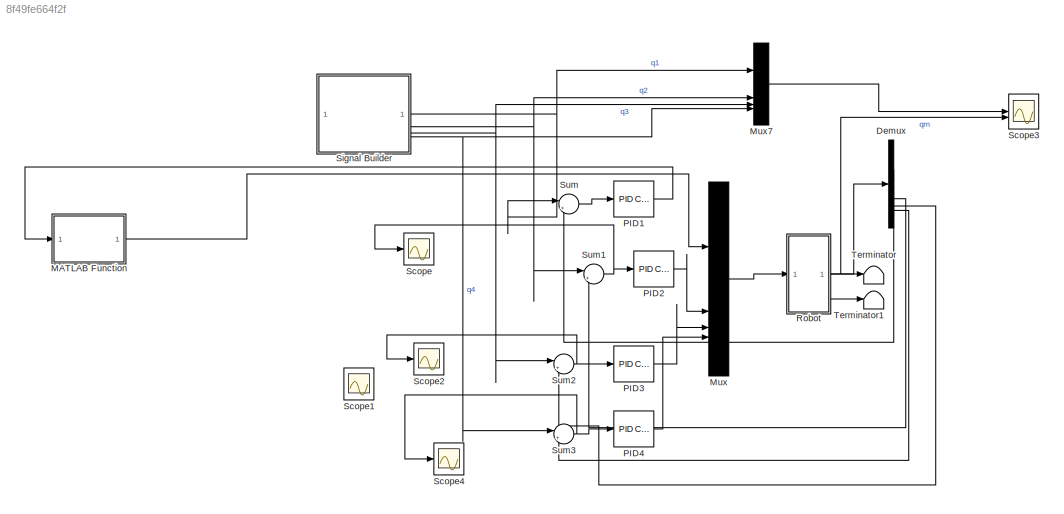
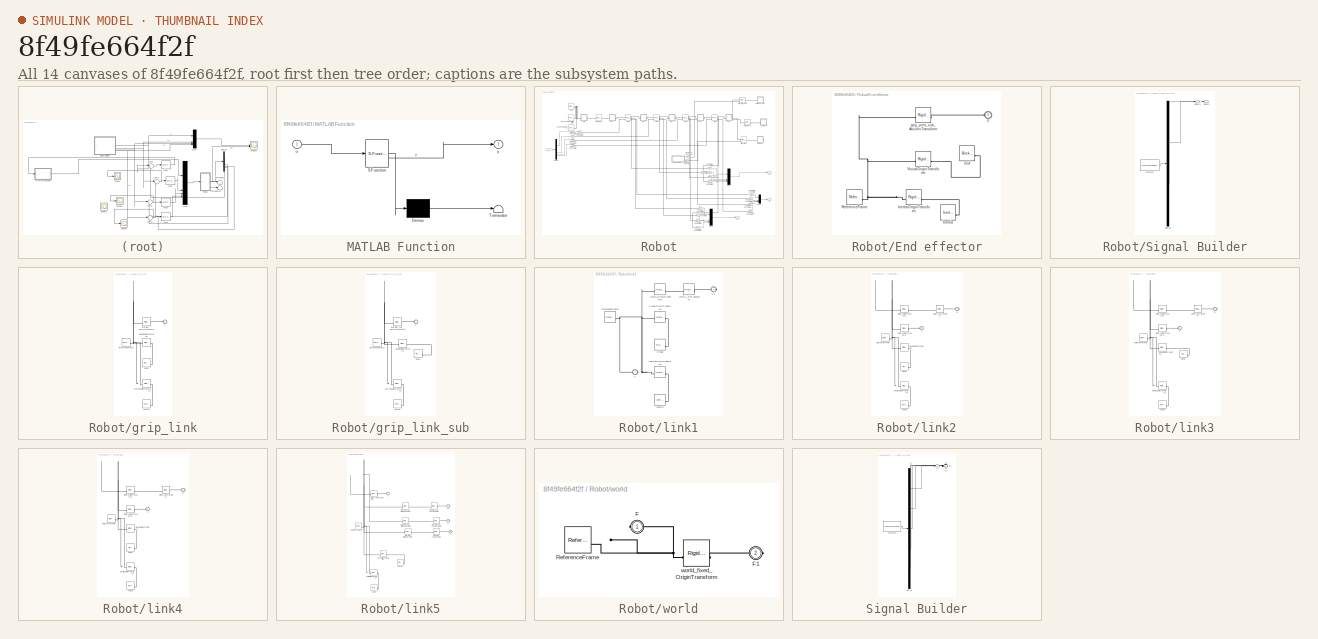
[diagram: thumbnail index - all 14 canvases of the model, root first then tree order]
MODEL slx_8f49fe664f2f
KIND model
CONFIG AbsTol = auto
CONFIG EnableMultiTasking = off
CONFIG FixedStep = auto
CONFIG MaxStep = auto
CONFIG MinStep = auto
CONFIG RelTol = 1e-3
CONFIG SampleTimeConstraint = Unconstrained
CONFIG SolverName = VariableStepAuto
CONFIG StartTime = 0.0
CONFIG StopTime = 50
BLOCK [Demux] Demux
BLOCK [SubSystem] MATLAB Function
  ErrorFcn = Stateflow.Translate.translate
  PermitHierarchicalResolution = ExplicitOnly
  SFBlockType = MATLAB Function
  TreatAsAtomicUnit = on
BLOCK [Demux] MATLAB Function/ Demux 
  Outputs = 1
BLOCK [S-Function] MATLAB Function/ SFunction 
  EnableBusSupport = off
  FunctionName = sf_sfun
  PortCounts = [1 2]
  SFcnIsStateOwnerBlock = off
  SFunctionDeploymentMode = off
  Tag = Stateflow S-Function 2
BLOCK [Terminator] MATLAB Function/ Terminator 
BLOCK [Inport] MATLAB Function/u
BLOCK [Outport] MATLAB Function/y
  VectorParamsAs1DForOutWhenUnconnected = off
BLOCK [Mux] Mux
  DisplayOption = bar
BLOCK [Mux] Mux7
  DisplayOption = bar
BLOCK [Reference] PID1  REF=slpidlib/PID Controller
  LibrarySourceBlock = simulink/Continuous/PID Controller
  SourceBlock = slpidlib/PID Controller
  SourceType = PID 1dof
BLOCK [Reference] PID2  REF=slpidlib/PID Controller
  LibrarySourceBlock = simulink/Continuous/PID Controller
  SourceBlock = slpidlib/PID Controller
  SourceType = PID 1dof
BLOCK [Reference] PID3   REF=slpidlib/PID Controller
  LibrarySourceBlock = simulink/Continuous/PID Controller
  SourceBlock = slpidlib/PID Controller
  SourceType = PID 1dof
BLOCK [Reference] PID4  REF=slpidlib/PID Controller
  LibrarySourceBlock = simulink/Continuous/PID Controller
  SourceBlock = slpidlib/PID Controller
  SourceType = PID 1dof
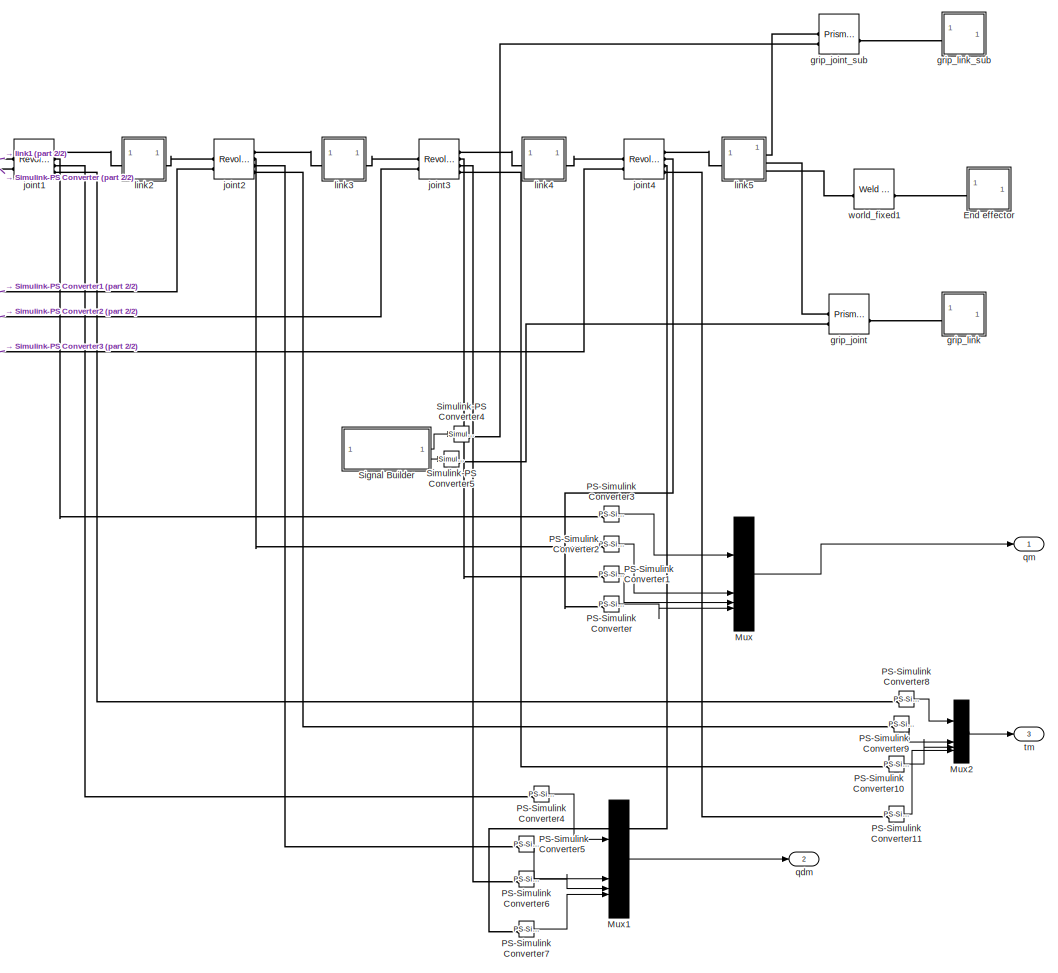
[diagram: Robot - part 1/2, right side, full height]
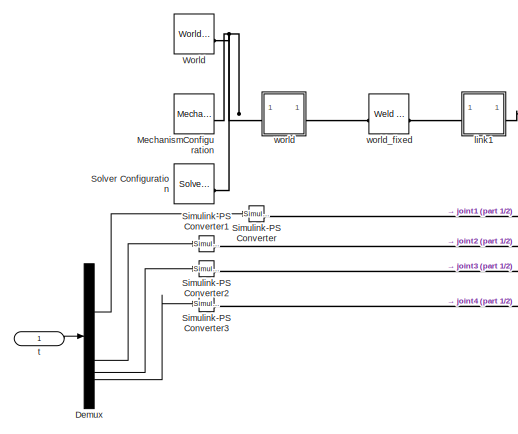
[diagram: Robot - part 2/2, top left region]
BLOCK [SubSystem] Robot
BLOCK [Demux] Robot/Demux
BLOCK [SubSystem] Robot/End effector
BLOCK [Reference] Robot/End effector/End   REF=sm_lib/Body Elements/Brick Solid
  SourceBlock = sm_lib/Body Elements/Brick Solid
  SourceType = Brick Solid
BLOCK [PMIOPort] Robot/End effector/F
  Side = Left
BLOCK [Reference] Robot/End effector/Inertia  REF=sm_lib/Body Elements/Inertia
  SourceBlock = sm_lib/Body Elements/Inertia
  SourceType = Inertia
BLOCK [Reference] Robot/End effector/InertiaOriginTransform  REF=sm_lib/Frames and
Transforms/Rigid
Transform
  SourceBlock = sm_lib/Frames and\nTransforms/Rigid\nTransform
  SourceType = Rigid\nTransform
BLOCK [Reference] Robot/End effector/ReferenceFrame  REF=sm_lib/Frames and
Transforms/Reference
Frame
  SourceBlock = sm_lib/Frames and\nTransforms/Reference\nFrame
  SourceType = Reference\nFrame
BLOCK [Reference] Robot/End effector/VisualOriginTransform  REF=sm_lib/Frames and
Transforms/Rigid
Transform
  SourceBlock = sm_lib/Frames and\nTransforms/Rigid\nTransform
  SourceType = Rigid\nTransform
BLOCK [Reference] Robot/End effector/grip_joint_sub_AxisInvTransform  REF=sm_lib/Frames and
Transforms/Rigid
Transform
  SourceBlock = sm_lib/Frames and\nTransforms/Rigid\nTransform
  SourceType = Rigid\nTransform
BLOCK [Reference] Robot/MechanismConfiguration  REF=sm_lib/Utilities/Mechanism
Configuration
  SourceBlock = sm_lib/Utilities/Mechanism\nConfiguration
  SourceType = Mechanism\nConfiguration
BLOCK [Mux] Robot/Mux
  DisplayOption = bar
BLOCK [Mux] Robot/Mux1
  DisplayOption = bar
BLOCK [Mux] Robot/Mux2
  DisplayOption = bar
BLOCK [Reference] Robot/PS-Simulink Converter  REF=nesl_utility/PS-Simulink
Converter
  SourceBlock = nesl_utility/PS-Simulink\nConverter
  SourceType = PS-Simulink\nConverter
BLOCK [Reference] Robot/PS-Simulink Converter1  REF=nesl_utility/PS-Simulink
Converter
  SourceBlock = nesl_utility/PS-Simulink\nConverter
  SourceType = PS-Simulink\nConverter
BLOCK [Reference] Robot/PS-Simulink Converter10  REF=nesl_utility/PS-Simulink
Converter
  SourceBlock = nesl_utility/PS-Simulink\nConverter
  SourceType = PS-Simulink\nConverter
BLOCK [Reference] Robot/PS-Simulink Converter11  REF=nesl_utility/PS-Simulink
Converter
  SourceBlock = nesl_utility/PS-Simulink\nConverter
  SourceType = PS-Simulink\nConverter
BLOCK [Reference] Robot/PS-Simulink Converter2  REF=nesl_utility/PS-Simulink
Converter
  NameLocation = right
  SourceBlock = nesl_utility/PS-Simulink\nConverter
  SourceType = PS-Simulink\nConverter
BLOCK [Reference] Robot/PS-Simulink Converter3  REF=nesl_utility/PS-Simulink
Converter
  SourceBlock = nesl_utility/PS-Simulink\nConverter
  SourceType = PS-Simulink\nConverter
BLOCK [Reference] Robot/PS-Simulink Converter4  REF=nesl_utility/PS-Simulink
Converter
  SourceBlock = nesl_utility/PS-Simulink\nConverter
  SourceType = PS-Simulink\nConverter
BLOCK [Reference] Robot/PS-Simulink Converter5  REF=nesl_utility/PS-Simulink
Converter
  SourceBlock = nesl_utility/PS-Simulink\nConverter
  SourceType = PS-Simulink\nConverter
BLOCK [Reference] Robot/PS-Simulink Converter6  REF=nesl_utility/PS-Simulink
Converter
  SourceBlock = nesl_utility/PS-Simulink\nConverter
  SourceType = PS-Simulink\nConverter
BLOCK [Reference] Robot/PS-Simulink Converter7  REF=nesl_utility/PS-Simulink
Converter
  SourceBlock = nesl_utility/PS-Simulink\nConverter
  SourceType = PS-Simulink\nConverter
BLOCK [Reference] Robot/PS-Simulink Converter8  REF=nesl_utility/PS-Simulink
Converter
  SourceBlock = nesl_utility/PS-Simulink\nConverter
  SourceType = PS-Simulink\nConverter
BLOCK [Reference] Robot/PS-Simulink Converter9  REF=nesl_utility/PS-Simulink
Converter
  SourceBlock = nesl_utility/PS-Simulink\nConverter
  SourceType = PS-Simulink\nConverter
BLOCK [SubSystem] Robot/Signal Builder
  ClipboardFcn = sigbuilder_block('clipboard');
  CloseFcn = sigbuilder_block('close');
  ContinueFcn = sigbuilder_block('continue');
  CopyFcn = sigbuilder_block('copy');
  DeleteFcn = sigbuilder_block('delete');
  LoadFcn = sigbuilder_block('load');
  MaskHideContents = on
  ModelCloseFcn = sigbuilder_block('modelClose');
  NameChangeFcn = sigbuilder_block('namechange');
  OpenFcn = sigbuilder_block('open',[433.5 124.5 558 353.25 ]);
  PauseFcn = sigbuilder_block('pause');
  PreSaveFcn = sigbuilder_block('preSave');
  StartFcn = sigbuilder_block('start');
  StopFcn = sigbuilder_block('stop');
  Tag = STV Subsys
BLOCK [Demux] Robot/Signal Builder/Demux
  DisplayOption = none
  Outputs = 2
  Tag = STV Demux
BLOCK [FromWorkspace] Robot/Signal Builder/FromWs
  Tag = STV FromWs
  VariableName = tuvar
BLOCK [Outport] Robot/Signal Builder/Signal 1
  Tag = STV Outport
BLOCK [Outport] Robot/Signal Builder/Signal 2
  Port = 2
  Tag = STV Outport
BLOCK [Reference] Robot/Simulink-PS Converter  REF=nesl_utility/Simulink-PS
Converter
  SourceBlock = nesl_utility/Simulink-PS\nConverter
  SourceType = Simulink-PS\nConverter
BLOCK [Reference] Robot/Simulink-PS Converter1  REF=nesl_utility/Simulink-PS
Converter
  SourceBlock = nesl_utility/Simulink-PS\nConverter
  SourceType = Simulink-PS\nConverter
BLOCK [Reference] Robot/Simulink-PS Converter2  REF=nesl_utility/Simulink-PS
Converter
  SourceBlock = nesl_utility/Simulink-PS\nConverter
  SourceType = Simulink-PS\nConverter
BLOCK [Reference] Robot/Simulink-PS Converter3  REF=nesl_utility/Simulink-PS
Converter
  SourceBlock = nesl_utility/Simulink-PS\nConverter
  SourceType = Simulink-PS\nConverter
BLOCK [Reference] Robot/Simulink-PS Converter4  REF=nesl_utility/Simulink-PS
Converter
  SourceBlock = nesl_utility/Simulink-PS\nConverter
  SourceType = Simulink-PS\nConverter
BLOCK [Reference] Robot/Simulink-PS Converter5  REF=nesl_utility/Simulink-PS
Converter
  SourceBlock = nesl_utility/Simulink-PS\nConverter
  SourceType = Simulink-PS\nConverter
BLOCK [Reference] Robot/Solver Configuration  REF=nesl_utility/Solver
Configuration
  SourceBlock = nesl_utility/Solver\nConfiguration
  SourceType = Solver\nConfiguration
BLOCK [Reference] Robot/World  REF=sm_lib/Frames and
Transforms/World Frame
  SourceBlock = sm_lib/Frames and\nTransforms/World Frame
  SourceType = World Frame
BLOCK [Reference] Robot/grip_joint  REF=sm_lib/Joints/Prismatic
Joint
  SourceBlock = sm_lib/Joints/Prismatic\nJoint
  SourceType = Prismatic\nJoint
BLOCK [Reference] Robot/grip_joint_sub  REF=sm_lib/Joints/Prismatic
Joint
  SourceBlock = sm_lib/Joints/Prismatic\nJoint
  SourceType = Prismatic\nJoint
BLOCK [SubSystem] Robot/grip_link
BLOCK [PMIOPort] Robot/grip_link/F
  Side = Left
BLOCK [Reference] Robot/grip_link/Inertia  REF=sm_lib/Body Elements/Inertia
  SourceBlock = sm_lib/Body Elements/Inertia
  SourceType = Inertia
BLOCK [Reference] Robot/grip_link/InertiaOriginTransform  REF=sm_lib/Frames and
Transforms/Rigid
Transform
  SourceBlock = sm_lib/Frames and\nTransforms/Rigid\nTransform
  SourceType = Rigid\nTransform
BLOCK [Reference] Robot/grip_link/ReferenceFrame  REF=sm_lib/Frames and
Transforms/Reference
Frame
  SourceBlock = sm_lib/Frames and\nTransforms/Reference\nFrame
  SourceType = Reference\nFrame
BLOCK [Reference] Robot/grip_link/Visual  REF=sm_lib/Body Elements/File Solid
  SourceBlock = sm_lib/Body Elements/File Solid
  SourceType = File Solid
BLOCK [Reference] Robot/grip_link/VisualOriginTransform  REF=sm_lib/Frames and
Transforms/Rigid
Transform
  SourceBlock = sm_lib/Frames and\nTransforms/Rigid\nTransform
  SourceType = Rigid\nTransform
BLOCK [Reference] Robot/grip_link/grip_joint_AxisInvTransform  REF=sm_lib/Frames and
Transforms/Rigid
Transform
  SourceBlock = sm_lib/Frames and\nTransforms/Rigid\nTransform
  SourceType = Rigid\nTransform
BLOCK [SubSystem] Robot/grip_link_sub
BLOCK [PMIOPort] Robot/grip_link_sub/F
  Side = Left
BLOCK [Reference] Robot/grip_link_sub/Inertia  REF=sm_lib/Body Elements/Inertia
  SourceBlock = sm_lib/Body Elements/Inertia
  SourceType = Inertia
BLOCK [Reference] Robot/grip_link_sub/InertiaOriginTransform  REF=sm_lib/Frames and
Transforms/Rigid
Transform
  SourceBlock = sm_lib/Frames and\nTransforms/Rigid\nTransform
  SourceType = Rigid\nTransform
BLOCK [Reference] Robot/grip_link_sub/ReferenceFrame  REF=sm_lib/Frames and
Transforms/Reference
Frame
  SourceBlock = sm_lib/Frames and\nTransforms/Reference\nFrame
  SourceType = Reference\nFrame
BLOCK [Reference] Robot/grip_link_sub/Visual  REF=sm_lib/Body Elements/File Solid
  SourceBlock = sm_lib/Body Elements/File Solid
  SourceType = File Solid
BLOCK [Reference] Robot/grip_link_sub/VisualOriginTransform  REF=sm_lib/Frames and
Transforms/Rigid
Transform
  SourceBlock = sm_lib/Frames and\nTransforms/Rigid\nTransform
  SourceType = Rigid\nTransform
BLOCK [Reference] Robot/grip_link_sub/grip_joint_sub_AxisInvTransform  REF=sm_lib/Frames and
Transforms/Rigid
Transform
  SourceBlock = sm_lib/Frames and\nTransforms/Rigid\nTransform
  SourceType = Rigid\nTransform
BLOCK [Reference] Robot/joint1  REF=sm_lib/Joints/Revolute Joint
  SourceBlock = sm_lib/Joints/Revolute Joint
  SourceType = Revolute Joint
BLOCK [Reference] Robot/joint2  REF=sm_lib/Joints/Revolute Joint
  SourceBlock = sm_lib/Joints/Revolute Joint
  SourceType = Revolute Joint
BLOCK [Reference] Robot/joint3  REF=sm_lib/Joints/Revolute Joint
  SourceBlock = sm_lib/Joints/Revolute Joint
  SourceType = Revolute Joint
BLOCK [Reference] Robot/joint4  REF=sm_lib/Joints/Revolute Joint
  SourceBlock = sm_lib/Joints/Revolute Joint
  SourceType = Revolute Joint
BLOCK [SubSystem] Robot/link1
BLOCK [PMIOPort] Robot/link1/F
  Side = Left
BLOCK [PMIOPort] Robot/link1/F1
  Port = 2
  Side = Right
BLOCK [Reference] Robot/link1/Inertia  REF=sm_lib/Body Elements/Inertia
  SourceBlock = sm_lib/Body Elements/Inertia
  SourceType = Inertia
BLOCK [Reference] Robot/link1/InertiaOriginTransform  REF=sm_lib/Frames and
Transforms/Rigid
Transform
  SourceBlock = sm_lib/Frames and\nTransforms/Rigid\nTransform
  SourceType = Rigid\nTransform
BLOCK [Reference] Robot/link1/ReferenceFrame  REF=sm_lib/Frames and
Transforms/Reference
Frame
  SourceBlock = sm_lib/Frames and\nTransforms/Reference\nFrame
  SourceType = Reference\nFrame
BLOCK [Reference] Robot/link1/Visual  REF=sm_lib/Body Elements/File Solid
  SourceBlock = sm_lib/Body Elements/File Solid
  SourceType = File Solid
BLOCK [Reference] Robot/link1/VisualOriginTransform  REF=sm_lib/Frames and
Transforms/Rigid
Transform
  SourceBlock = sm_lib/Frames and\nTransforms/Rigid\nTransform
  SourceType = Rigid\nTransform
BLOCK [Reference] Robot/link1/joint1_AxisTransform  REF=sm_lib/Frames and
Transforms/Rigid
Transform
  SourceBlock = sm_lib/Frames and\nTransforms/Rigid\nTransform
  SourceType = Rigid\nTransform
BLOCK [Reference] Robot/link1/joint1_OriginTransform  REF=sm_lib/Frames and
Transforms/Rigid
Transform
  SourceBlock = sm_lib/Frames and\nTransforms/Rigid\nTransform
  SourceType = Rigid\nTransform
BLOCK [SubSystem] Robot/link2
BLOCK [PMIOPort] Robot/link2/F
  Side = Left
BLOCK [PMIOPort] Robot/link2/F1
  Port = 2
  Side = Right
BLOCK [Reference] Robot/link2/Inertia  REF=sm_lib/Body Elements/Inertia
  SourceBlock = sm_lib/Body Elements/Inertia
  SourceType = Inertia
BLOCK [Reference] Robot/link2/InertiaOriginTransform  REF=sm_lib/Frames and
Transforms/Rigid
Transform
  SourceBlock = sm_lib/Frames and\nTransforms/Rigid\nTransform
  SourceType = Rigid\nTransform
BLOCK [Reference] Robot/link2/ReferenceFrame  REF=sm_lib/Frames and
Transforms/Reference
Frame
  SourceBlock = sm_lib/Frames and\nTransforms/Reference\nFrame
  SourceType = Reference\nFrame
BLOCK [Reference] Robot/link2/Visual  REF=sm_lib/Body Elements/File Solid
  SourceBlock = sm_lib/Body Elements/File Solid
  SourceType = File Solid
BLOCK [Reference] Robot/link2/VisualOriginTransform  REF=sm_lib/Frames and
Transforms/Rigid
Transform
  SourceBlock = sm_lib/Frames and\nTransforms/Rigid\nTransform
  SourceType = Rigid\nTransform
BLOCK [Reference] Robot/link2/joint1_AxisInvTransform  REF=sm_lib/Frames and
Transforms/Rigid
Transform
  SourceBlock = sm_lib/Frames and\nTransforms/Rigid\nTransform
  SourceType = Rigid\nTransform
BLOCK [Reference] Robot/link2/joint2_AxisTransform  REF=sm_lib/Frames and
Transforms/Rigid
Transform
  SourceBlock = sm_lib/Frames and\nTransforms/Rigid\nTransform
  SourceType = Rigid\nTransform
BLOCK [Reference] Robot/link2/joint2_OriginTransform  REF=sm_lib/Frames and
Transforms/Rigid
Transform
  SourceBlock = sm_lib/Frames and\nTransforms/Rigid\nTransform
  SourceType = Rigid\nTransform
BLOCK [SubSystem] Robot/link3
BLOCK [PMIOPort] Robot/link3/F
  Side = Left
BLOCK [PMIOPort] Robot/link3/F1
  Port = 2
  Side = Right
BLOCK [Reference] Robot/link3/Inertia  REF=sm_lib/Body Elements/Inertia
  SourceBlock = sm_lib/Body Elements/Inertia
  SourceType = Inertia
BLOCK [Reference] Robot/link3/InertiaOriginTransform  REF=sm_lib/Frames and
Transforms/Rigid
Transform
  SourceBlock = sm_lib/Frames and\nTransforms/Rigid\nTransform
  SourceType = Rigid\nTransform
BLOCK [Reference] Robot/link3/ReferenceFrame  REF=sm_lib/Frames and
Transforms/Reference
Frame
  SourceBlock = sm_lib/Frames and\nTransforms/Reference\nFrame
  SourceType = Reference\nFrame
BLOCK [Reference] Robot/link3/Visual  REF=sm_lib/Body Elements/File Solid
  SourceBlock = sm_lib/Body Elements/File Solid
  SourceType = File Solid
BLOCK [Reference] Robot/link3/VisualOriginTransform  REF=sm_lib/Frames and
Transforms/Rigid
Transform
  SourceBlock = sm_lib/Frames and\nTransforms/Rigid\nTransform
  SourceType = Rigid\nTransform
BLOCK [Reference] Robot/link3/joint2_AxisInvTransform  REF=sm_lib/Frames and
Transforms/Rigid
Transform
  SourceBlock = sm_lib/Frames and\nTransforms/Rigid\nTransform
  SourceType = Rigid\nTransform
BLOCK [Reference] Robot/link3/joint3_AxisTransform  REF=sm_lib/Frames and
Transforms/Rigid
Transform
  SourceBlock = sm_lib/Frames and\nTransforms/Rigid\nTransform
  SourceType = Rigid\nTransform
BLOCK [Reference] Robot/link3/joint3_OriginTransform  REF=sm_lib/Frames and
Transforms/Rigid
Transform
  SourceBlock = sm_lib/Frames and\nTransforms/Rigid\nTransform
  SourceType = Rigid\nTransform
BLOCK [SubSystem] Robot/link4
BLOCK [PMIOPort] Robot/link4/F
  Side = Left
BLOCK [PMIOPort] Robot/link4/F1
  Port = 2
  Side = Right
BLOCK [Reference] Robot/link4/Inertia  REF=sm_lib/Body Elements/Inertia
  SourceBlock = sm_lib/Body Elements/Inertia
  SourceType = Inertia
BLOCK [Reference] Robot/link4/InertiaOriginTransform  REF=sm_lib/Frames and
Transforms/Rigid
Transform
  SourceBlock = sm_lib/Frames and\nTransforms/Rigid\nTransform
  SourceType = Rigid\nTransform
BLOCK [Reference] Robot/link4/ReferenceFrame  REF=sm_lib/Frames and
Transforms/Reference
Frame
  SourceBlock = sm_lib/Frames and\nTransforms/Reference\nFrame
  SourceType = Reference\nFrame
BLOCK [Reference] Robot/link4/Visual  REF=sm_lib/Body Elements/File Solid
  SourceBlock = sm_lib/Body Elements/File Solid
  SourceType = File Solid
BLOCK [Reference] Robot/link4/VisualOriginTransform  REF=sm_lib/Frames and
Transforms/Rigid
Transform
  SourceBlock = sm_lib/Frames and\nTransforms/Rigid\nTransform
  SourceType = Rigid\nTransform
BLOCK [Reference] Robot/link4/joint3_AxisInvTransform  REF=sm_lib/Frames and
Transforms/Rigid
Transform
  SourceBlock = sm_lib/Frames and\nTransforms/Rigid\nTransform
  SourceType = Rigid\nTransform
BLOCK [Reference] Robot/link4/joint4_AxisTransform  REF=sm_lib/Frames and
Transforms/Rigid
Transform
  SourceBlock = sm_lib/Frames and\nTransforms/Rigid\nTransform
  SourceType = Rigid\nTransform
BLOCK [Reference] Robot/link4/joint4_OriginTransform  REF=sm_lib/Frames and
Transforms/Rigid
Transform
  SourceBlock = sm_lib/Frames and\nTransforms/Rigid\nTransform
  SourceType = Rigid\nTransform
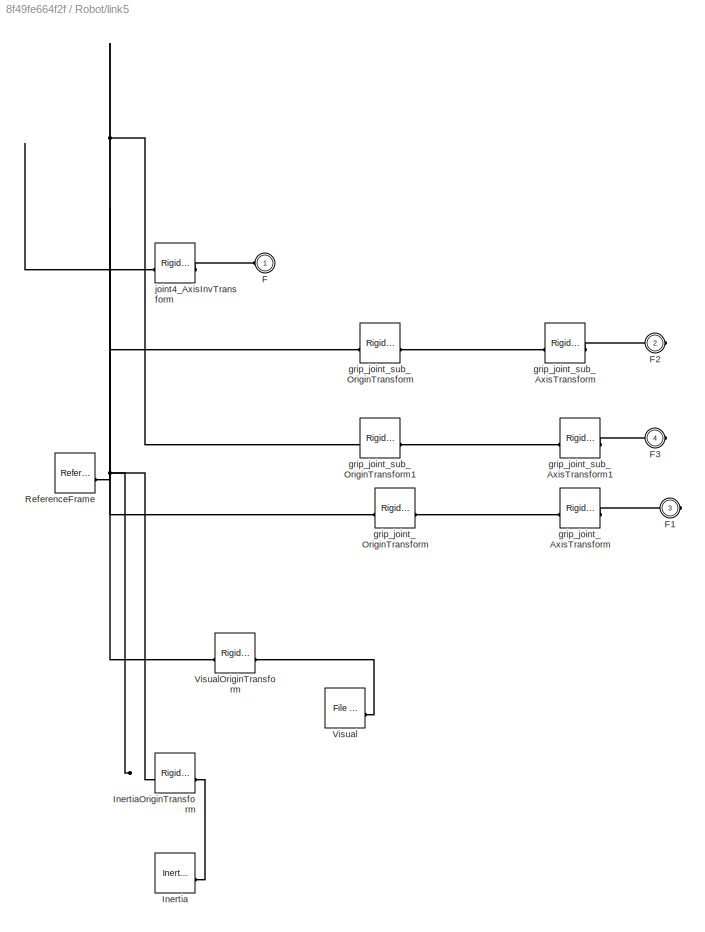
BLOCK [SubSystem] Robot/link5
BLOCK [PMIOPort] Robot/link5/F
  Side = Left
BLOCK [PMIOPort] Robot/link5/F1
  Port = 3
  Side = Right
BLOCK [PMIOPort] Robot/link5/F2
  Port = 2
  Side = Right
BLOCK [PMIOPort] Robot/link5/F3
  Port = 4
  Side = Right
BLOCK [Reference] Robot/link5/Inertia  REF=sm_lib/Body Elements/Inertia
  SourceBlock = sm_lib/Body Elements/Inertia
  SourceType = Inertia
BLOCK [Reference] Robot/link5/InertiaOriginTransform  REF=sm_lib/Frames and
Transforms/Rigid
Transform
  SourceBlock = sm_lib/Frames and\nTransforms/Rigid\nTransform
  SourceType = Rigid\nTransform
BLOCK [Reference] Robot/link5/ReferenceFrame  REF=sm_lib/Frames and
Transforms/Reference
Frame
  SourceBlock = sm_lib/Frames and\nTransforms/Reference\nFrame
  SourceType = Reference\nFrame
BLOCK [Reference] Robot/link5/Visual  REF=sm_lib/Body Elements/File Solid
  SourceBlock = sm_lib/Body Elements/File Solid
  SourceType = File Solid
BLOCK [Reference] Robot/link5/VisualOriginTransform  REF=sm_lib/Frames and
Transforms/Rigid
Transform
  SourceBlock = sm_lib/Frames and\nTransforms/Rigid\nTransform
  SourceType = Rigid\nTransform
BLOCK [Reference] Robot/link5/grip_joint_AxisTransform  REF=sm_lib/Frames and
Transforms/Rigid
Transform
  SourceBlock = sm_lib/Frames and\nTransforms/Rigid\nTransform
  SourceType = Rigid\nTransform
BLOCK [Reference] Robot/link5/grip_joint_OriginTransform  REF=sm_lib/Frames and
Transforms/Rigid
Transform
  SourceBlock = sm_lib/Frames and\nTransforms/Rigid\nTransform
  SourceType = Rigid\nTransform
BLOCK [Reference] Robot/link5/grip_joint_sub_AxisTransform  REF=sm_lib/Frames and
Transforms/Rigid
Transform
  SourceBlock = sm_lib/Frames and\nTransforms/Rigid\nTransform
  SourceType = Rigid\nTransform
BLOCK [Reference] Robot/link5/grip_joint_sub_AxisTransform1  REF=sm_lib/Frames and
Transforms/Rigid
Transform
  SourceBlock = sm_lib/Frames and\nTransforms/Rigid\nTransform
  SourceType = Rigid\nTransform
BLOCK [Reference] Robot/link5/grip_joint_sub_OriginTransform  REF=sm_lib/Frames and
Transforms/Rigid
Transform
  SourceBlock = sm_lib/Frames and\nTransforms/Rigid\nTransform
  SourceType = Rigid\nTransform
BLOCK [Reference] Robot/link5/grip_joint_sub_OriginTransform1  REF=sm_lib/Frames and
Transforms/Rigid
Transform
  SourceBlock = sm_lib/Frames and\nTransforms/Rigid\nTransform
  SourceType = Rigid\nTransform
BLOCK [Reference] Robot/link5/joint4_AxisInvTransform  REF=sm_lib/Frames and
Transforms/Rigid
Transform
  SourceBlock = sm_lib/Frames and\nTransforms/Rigid\nTransform
  SourceType = Rigid\nTransform
BLOCK [Outport] Robot/qdm
  Port = 2
BLOCK [Outport] Robot/qm
BLOCK [Inport] Robot/t
BLOCK [Outport] Robot/tm
  Port = 3
BLOCK [SubSystem] Robot/world
BLOCK [PMIOPort] Robot/world/F
  Side = Left
BLOCK [PMIOPort] Robot/world/F1
  Port = 2
  Side = Right
BLOCK [Reference] Robot/world/ReferenceFrame  REF=sm_lib/Frames and
Transforms/Reference
Frame
  SourceBlock = sm_lib/Frames and\nTransforms/Reference\nFrame
  SourceType = Reference\nFrame
BLOCK [Reference] Robot/world/world_fixed_OriginTransform  REF=sm_lib/Frames and
Transforms/Rigid
Transform
  SourceBlock = sm_lib/Frames and\nTransforms/Rigid\nTransform
  SourceType = Rigid\nTransform
BLOCK [Reference] Robot/world_fixed  REF=sm_lib/Joints/Weld Joint
  SourceBlock = sm_lib/Joints/Weld Joint
  SourceType = Weld Joint
BLOCK [Reference] Robot/world_fixed1  REF=sm_lib/Joints/Weld Joint
  SourceBlock = sm_lib/Joints/Weld Joint
  SourceType = Weld Joint
BLOCK [Scope] Scope
  Floating = off
  NumInputPorts = 1
  ScopeSpecificationString = Simulink.scopes.TimeScopeBlockCfg('CurrentConfiguration', extmgr.ConfigurationSet(extmgr.Configuration('Core','General UI',true),extmgr.Configuration('Core','Source UI',true),extmgr.Configuration('Sources','WiredSimulink',true,'DataLoggingVariableName','ScopeData1'),extmgr.Configuration('Visuals','Time Domain',true,'SerializedDisplays',{struct('MinYLimReal','-0.01274','MaxYLimReal','0.00993','YLab...<+1461ch>
BLOCK [Scope] Scope1
  Floating = off
  NumInputPorts = 1
  ScopeSpecificationString = Simulink.scopes.TimeScopeBlockCfg('CurrentConfiguration', extmgr.ConfigurationSet(extmgr.Configuration('Core','General UI',true),extmgr.Configuration('Core','Source UI',true),extmgr.Configuration('Sources','WiredSimulink',true,'DataLoggingVariableName','ScopeData2'),extmgr.Configuration('Visuals','Time Domain',true,'SerializedDisplays',{struct('MinYLimReal','-0.0314','MaxYLimReal','0.28126','YLabe...<+1412ch>
BLOCK [Scope] Scope2
  Floating = off
  NumInputPorts = 1
  ScopeSpecificationString = Simulink.scopes.TimeScopeBlockCfg('CurrentConfiguration', extmgr.ConfigurationSet(extmgr.Configuration('Core','General UI',true),extmgr.Configuration('Core','Source UI',true),extmgr.Configuration('Sources','WiredSimulink',true,'DataLoggingVariableName','ScopeData3'),extmgr.Configuration('Visuals','Time Domain',true,'SerializedDisplays',{struct('MinYLimReal','-0.26976','MaxYLimReal','0.36334','YLab...<+1392ch>
BLOCK [Scope] Scope3
  Floating = off
  NumInputPorts = 2
  ScopeSpecificationString = Simulink.scopes.TimeScopeBlockCfg('CurrentConfiguration', extmgr.ConfigurationSet(extmgr.Configuration('Core','General UI',true),extmgr.Configuration('Core','Source UI',true),extmgr.Configuration('Sources','WiredSimulink',true),extmgr.Configuration('Visuals','Time Domain',true,'SerializedDisplays',{struct('MinYLimReal','-0.03137','MaxYLimReal','0.28127','YLabelReal','','MinYLimMag','0.00000','MaxY...<+2315ch>
BLOCK [Scope] Scope4
  Floating = off
  NumInputPorts = 1
  ScopeSpecificationString = Simulink.scopes.TimeScopeBlockCfg('CurrentConfiguration', extmgr.ConfigurationSet(extmgr.Configuration('Core','General UI',true),extmgr.Configuration('Core','Source UI',true),extmgr.Configuration('Sources','WiredSimulink',true,'DataLoggingVariableName','ScopeData4'),extmgr.Configuration('Visuals','Time Domain',true,'SerializedDisplays',{struct('MinYLimReal','-0.14995','MaxYLimReal','0.33779','YLab...<+1392ch>
BLOCK [SubSystem] Signal Builder
  ClipboardFcn = sigbuilder_block('clipboard');
  CloseFcn = sigbuilder_block('close');
  ContinueFcn = sigbuilder_block('continue');
  CopyFcn = sigbuilder_block('copy');
  DeleteFcn = sigbuilder_block('delete');
  LoadFcn = sigbuilder_block('load');
  MaskHideContents = on
  ModelCloseFcn = sigbuilder_block('modelClose');
  NameChangeFcn = sigbuilder_block('namechange');
  OpenFcn = sigbuilder_block('open',[54 0 970.5 384 ]);
  PauseFcn = sigbuilder_block('pause');
  PreSaveFcn = sigbuilder_block('preSave');
  StartFcn = sigbuilder_block('start');
  StopFcn = sigbuilder_block('stop');
  Tag = STV Subsys
BLOCK [Outport] Signal Builder/ S1
  Tag = STV Outport
BLOCK [Demux] Signal Builder/Demux
  DisplayOption = none
  Outputs = 5
  Tag = STV Demux
BLOCK [FromWorkspace] Signal Builder/FromWs
  Tag = STV FromWs
  VariableName = tuvar
BLOCK [Outport] Signal Builder/S2
  Port = 2
  Tag = STV Outport
BLOCK [Outport] Signal Builder/S3
  Port = 3
  Tag = STV Outport
BLOCK [Outport] Signal Builder/S4
  Port = 4
  Tag = STV Outport
BLOCK [Outport] Signal Builder/S5
  Port = 5
  Tag = STV Outport
BLOCK [Sum] Sum
  Inputs = |+-
BLOCK [Sum] Sum1
  Inputs = |+-
BLOCK [Sum] Sum2
  Inputs = |+-
BLOCK [Sum] Sum3
  Inputs = |+-
BLOCK [Terminator] Terminator
BLOCK [Terminator] Terminator1
LINE Demux:1 -> Sum:2
LINE Demux:2 -> Sum1:2
LINE Demux:3 -> Sum2:2
LINE Demux:4 -> Sum3:2
LINE MATLAB Function:1 -> Mux:1
LINE Mux7:1 -> Scope3:1
LINE Mux:1 -> Robot:1
LINE PID1:1 -> MATLAB Function:1
LINE PID2:1 -> Mux:2
LINE PID3 :1 -> Mux:3
LINE PID4:1 -> Mux:4
LINE Robot/Demux:1 -> Robot/Simulink-PS Converter:1
LINE Robot/Demux:2 -> Robot/Simulink-PS Converter1:1
LINE Robot/Demux:3 -> Robot/Simulink-PS Converter2:1
LINE Robot/Demux:4 -> Robot/Simulink-PS Converter3:1
LINE Robot/Mux1:1 -> Robot/qdm:1
LINE Robot/Mux2:1 -> Robot/tm:1
LINE Robot/Mux:1 -> Robot/qm:1
LINE Robot/PS-Simulink Converter10:1 -> Robot/Mux2:3
LINE Robot/PS-Simulink Converter11:1 -> Robot/Mux2:4
LINE Robot/PS-Simulink Converter1:1 -> Robot/Mux:3
LINE Robot/PS-Simulink Converter2:1 -> Robot/Mux:2
LINE Robot/PS-Simulink Converter3:1 -> Robot/Mux:1
LINE Robot/PS-Simulink Converter4:1 -> Robot/Mux1:1
LINE Robot/PS-Simulink Converter5:1 -> Robot/Mux1:2
LINE Robot/PS-Simulink Converter6:1 -> Robot/Mux1:3
LINE Robot/PS-Simulink Converter7:1 -> Robot/Mux1:4
LINE Robot/PS-Simulink Converter8:1 -> Robot/Mux2:1
LINE Robot/PS-Simulink Converter9:1 -> Robot/Mux2:2
LINE Robot/PS-Simulink Converter:1 -> Robot/Mux:4
LINE Robot/Signal Builder:1 -> Robot/Simulink-PS Converter4:1
LINE Robot/Signal Builder:2 -> Robot/Simulink-PS Converter5:1
LINE Robot/t:1 -> Robot/Demux:1
NET Robot:1 -> Demux:1, Scope3:2
LINE Robot:2 -> Terminator:1
LINE Robot:3 -> Terminator1:1
NET Signal Builder:1 -> Mux7:1, Sum:1
NET Signal Builder:2 -> Mux7:2, Sum1:1
NET Signal Builder:3 -> Mux7:3, Sum2:1
NET Signal Builder:4 -> Mux7:4, Sum3:1
NET Sum1:1 -> PID2:1, Scope:1
NET Sum2:1 -> PID3 :1, Scope2:1
NET Sum3:1 -> PID4:1, Scope4:1
LINE Sum:1 -> PID1:1
PLINE Robot/End effector/End :RConn1 -- Robot/End effector/VisualOriginTransform:RConn1
PLINE Robot/End effector/F:RConn1 -- Robot/End effector/grip_joint_sub_AxisInvTransform:RConn1
PLINE Robot/End effector/Inertia:RConn1 -- Robot/End effector/InertiaOriginTransform:RConn1
PNET net1: Robot/End effector/InertiaOriginTransform:LConn1 -- Robot/End effector/ReferenceFrame:RConn1 -- Robot/End effector/VisualOriginTransform:LConn1 -- Robot/End effector/grip_joint_sub_AxisInvTransform:LConn1
PLINE Robot/End effector:LConn1 -- Robot/world_fixed1:RConn1
PNET net2: Robot/MechanismConfiguration:RConn1 -- Robot/Solver Configuration:RConn1 -- Robot/World:RConn1 -- Robot/world:LConn1
PLINE Robot/PS-Simulink Converter10:LConn1 -- Robot/joint3:RConn4
PLINE Robot/PS-Simulink Converter11:LConn1 -- Robot/joint4:RConn4
PLINE Robot/PS-Simulink Converter1:LConn1 -- Robot/joint3:RConn2
PLINE Robot/PS-Simulink Converter2:LConn1 -- Robot/joint2:RConn2
PLINE Robot/PS-Simulink Converter3:LConn1 -- Robot/joint1:RConn2
PLINE Robot/PS-Simulink Converter4:LConn1 -- Robot/joint1:RConn3
PLINE Robot/PS-Simulink Converter5:LConn1 -- Robot/joint2:RConn3
PLINE Robot/PS-Simulink Converter6:LConn1 -- Robot/joint3:RConn3
PLINE Robot/PS-Simulink Converter7:LConn1 -- Robot/joint4:RConn3
PLINE Robot/PS-Simulink Converter8:LConn1 -- Robot/joint1:RConn4
PLINE Robot/PS-Simulink Converter9:LConn1 -- Robot/joint2:RConn4
PLINE Robot/PS-Simulink Converter:LConn1 -- Robot/joint4:RConn2
PLINE Robot/Simulink-PS Converter1:RConn1 -- Robot/joint2:LConn2
PLINE Robot/Simulink-PS Converter2:RConn1 -- Robot/joint3:LConn2
PLINE Robot/Simulink-PS Converter3:RConn1 -- Robot/joint4:LConn2
PLINE Robot/Simulink-PS Converter4:RConn1 -- Robot/grip_joint_sub:LConn2
PLINE Robot/Simulink-PS Converter5:RConn1 -- Robot/grip_joint:LConn2
PLINE Robot/Simulink-PS Converter:RConn1 -- Robot/joint1:LConn2
PLINE Robot/grip_joint:LConn1 -- Robot/link5:RConn2
PLINE Robot/grip_joint:RConn1 -- Robot/grip_link:LConn1
PLINE Robot/grip_joint_sub:LConn1 -- Robot/link5:RConn1
PLINE Robot/grip_joint_sub:RConn1 -- Robot/grip_link_sub:LConn1
PLINE Robot/grip_link/F:RConn1 -- Robot/grip_link/grip_joint_AxisInvTransform:RConn1
PLINE Robot/grip_link/Inertia:RConn1 -- Robot/grip_link/InertiaOriginTransform:RConn1
PNET net3: Robot/grip_link/InertiaOriginTransform:LConn1 -- Robot/grip_link/ReferenceFrame:RConn1 -- Robot/grip_link/VisualOriginTransform:LConn1 -- Robot/grip_link/grip_joint_AxisInvTransform:LConn1
PLINE Robot/grip_link/Visual:RConn1 -- Robot/grip_link/VisualOriginTransform:RConn1
PLINE Robot/grip_link_sub/F:RConn1 -- Robot/grip_link_sub/grip_joint_sub_AxisInvTransform:RConn1
PLINE Robot/grip_link_sub/Inertia:RConn1 -- Robot/grip_link_sub/InertiaOriginTransform:RConn1
PNET net4: Robot/grip_link_sub/InertiaOriginTransform:LConn1 -- Robot/grip_link_sub/ReferenceFrame:RConn1 -- Robot/grip_link_sub/VisualOriginTransform:LConn1 -- Robot/grip_link_sub/grip_joint_sub_AxisInvTransform:LConn1
PLINE Robot/grip_link_sub/Visual:RConn1 -- Robot/grip_link_sub/VisualOriginTransform:RConn1
PLINE Robot/joint1:LConn1 -- Robot/link1:RConn1
PLINE Robot/joint1:RConn1 -- Robot/link2:LConn1
PLINE Robot/joint2:LConn1 -- Robot/link2:RConn1
PLINE Robot/joint2:RConn1 -- Robot/link3:LConn1
PLINE Robot/joint3:LConn1 -- Robot/link3:RConn1
PLINE Robot/joint3:RConn1 -- Robot/link4:LConn1
PLINE Robot/joint4:LConn1 -- Robot/link4:RConn1
PLINE Robot/joint4:RConn1 -- Robot/link5:LConn1
PLINE Robot/link1/F1:RConn1 -- Robot/link1/joint1_AxisTransform:RConn1
PNET net5: Robot/link1/F:RConn1 -- Robot/link1/InertiaOriginTransform:LConn1 -- Robot/link1/ReferenceFrame:RConn1 -- Robot/link1/VisualOriginTransform:LConn1 -- Robot/link1/joint1_OriginTransform:LConn1
PLINE Robot/link1/Inertia:RConn1 -- Robot/link1/InertiaOriginTransform:RConn1
PLINE Robot/link1/Visual:RConn1 -- Robot/link1/VisualOriginTransform:RConn1
PLINE Robot/link1/joint1_AxisTransform:LConn1 -- Robot/link1/joint1_OriginTransform:RConn1
PLINE Robot/link1:LConn1 -- Robot/world_fixed:RConn1
PLINE Robot/link2/F1:RConn1 -- Robot/link2/joint2_AxisTransform:RConn1
PLINE Robot/link2/F:RConn1 -- Robot/link2/joint1_AxisInvTransform:RConn1
PLINE Robot/link2/Inertia:RConn1 -- Robot/link2/InertiaOriginTransform:RConn1
PNET net6: Robot/link2/InertiaOriginTransform:LConn1 -- Robot/link2/ReferenceFrame:RConn1 -- Robot/link2/VisualOriginTransform:LConn1 -- Robot/link2/joint1_AxisInvTransform:LConn1 -- Robot/link2/joint2_OriginTransform:LConn1
PLINE Robot/link2/Visual:RConn1 -- Robot/link2/VisualOriginTransform:RConn1
PLINE Robot/link2/joint2_AxisTransform:LConn1 -- Robot/link2/joint2_OriginTransform:RConn1
PLINE Robot/link3/F1:RConn1 -- Robot/link3/joint3_AxisTransform:RConn1
PLINE Robot/link3/F:RConn1 -- Robot/link3/joint2_AxisInvTransform:RConn1
PLINE Robot/link3/Inertia:RConn1 -- Robot/link3/InertiaOriginTransform:RConn1
PNET net7: Robot/link3/InertiaOriginTransform:LConn1 -- Robot/link3/ReferenceFrame:RConn1 -- Robot/link3/VisualOriginTransform:LConn1 -- Robot/link3/joint2_AxisInvTransform:LConn1 -- Robot/link3/joint3_OriginTransform:LConn1
PLINE Robot/link3/Visual:RConn1 -- Robot/link3/VisualOriginTransform:RConn1
PLINE Robot/link3/joint3_AxisTransform:LConn1 -- Robot/link3/joint3_OriginTransform:RConn1
PLINE Robot/link4/F1:RConn1 -- Robot/link4/joint4_AxisTransform:RConn1
PLINE Robot/link4/F:RConn1 -- Robot/link4/joint3_AxisInvTransform:RConn1
PLINE Robot/link4/Inertia:RConn1 -- Robot/link4/InertiaOriginTransform:RConn1
PNET net8: Robot/link4/InertiaOriginTransform:LConn1 -- Robot/link4/ReferenceFrame:RConn1 -- Robot/link4/VisualOriginTransform:LConn1 -- Robot/link4/joint3_AxisInvTransform:LConn1 -- Robot/link4/joint4_OriginTransform:LConn1
PLINE Robot/link4/Visual:RConn1 -- Robot/link4/VisualOriginTransform:RConn1
PLINE Robot/link4/joint4_AxisTransform:LConn1 -- Robot/link4/joint4_OriginTransform:RConn1
PLINE Robot/link5/F1:RConn1 -- Robot/link5/grip_joint_AxisTransform:RConn1
PLINE Robot/link5/F2:RConn1 -- Robot/link5/grip_joint_sub_AxisTransform:RConn1
PLINE Robot/link5/F3:RConn1 -- Robot/link5/grip_joint_sub_AxisTransform1:RConn1
PLINE Robot/link5/F:RConn1 -- Robot/link5/joint4_AxisInvTransform:RConn1
PLINE Robot/link5/Inertia:RConn1 -- Robot/link5/InertiaOriginTransform:RConn1
PNET net9: Robot/link5/InertiaOriginTransform:LConn1 -- Robot/link5/ReferenceFrame:RConn1 -- Robot/link5/VisualOriginTransform:LConn1 -- Robot/link5/grip_joint_OriginTransform:LConn1 -- Robot/link5/grip_joint_sub_OriginTransform1:LConn1 -- Robot/link5/grip_joint_sub_OriginTransform:LConn1 -- Robot/link5/joint4_AxisInvTransform:LConn1
PLINE Robot/link5/Visual:RConn1 -- Robot/link5/VisualOriginTransform:RConn1
PLINE Robot/link5/grip_joint_AxisTransform:LConn1 -- Robot/link5/grip_joint_OriginTransform:RConn1
PLINE Robot/link5/grip_joint_sub_AxisTransform1:LConn1 -- Robot/link5/grip_joint_sub_OriginTransform1:RConn1
PLINE Robot/link5/grip_joint_sub_AxisTransform:LConn1 -- Robot/link5/grip_joint_sub_OriginTransform:RConn1
PLINE Robot/link5:RConn3 -- Robot/world_fixed1:LConn1
PLINE Robot/world/F1:RConn1 -- Robot/world/world_fixed_OriginTransform:RConn1
PNET net10: Robot/world/F:RConn1 -- Robot/world/ReferenceFrame:RConn1 -- Robot/world/world_fixed_OriginTransform:LConn1
PLINE Robot/world:RConn1 -- Robot/world_fixed:LConn1
note: NET lines group one-source signal fan-out (src -> all destinations, sorted); 1:1 wires keep LINE; PNET lines group multi-terminal physical nets as a canonical sorted terminal list (undirected conserving connections); 2-terminal nets keep the pairwise PLINE form
CHART MATLAB Function states=1 transitions=1
  STATE_LABEL 'eML_blk_kernel()'
  STATE_LABEL "SCRIPT:\nfunction y = fcn(u)\n%#codegen\n% Define the transfer function of the low-pass filter\nfc = 10; % cutoff frequency in Hz\nw = 2*pi*fc;\ns = tf('s');\nGf = w/(s + w);\n\n% Define the open-loop system\nGp = tf([1], [1, 2, 1]); % transfer function of the plant\nsys_ol = Gp * C;\n\ny = feedback(sys_ol * Gf, 1);\n"
CHART  states=0 transitions=0
